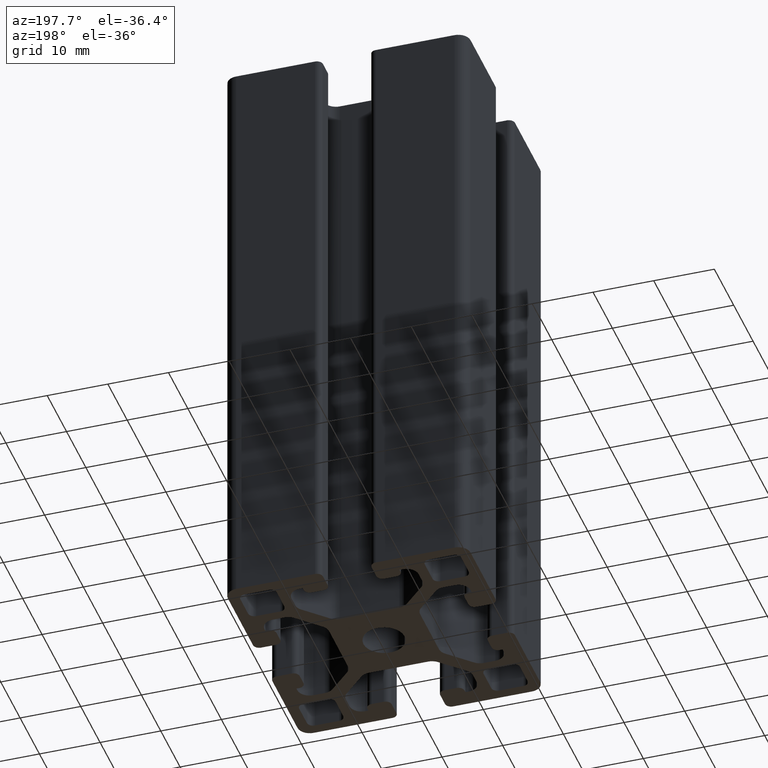
[diagram: clean part render]
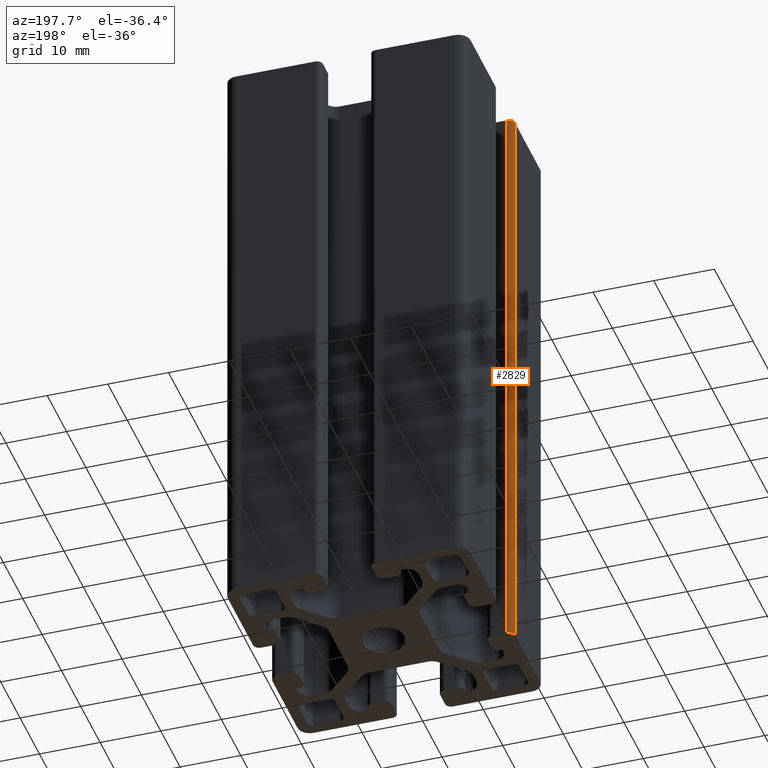
[diagram: same view with one face highlighted and labeled with its STEP entity id]
A machine part, auxiliary view. The second image highlights one B-rep face of the part: STEP entity #2829.
In plain terms, the highlighted cylindrical surface (edge-blend (fillet) strip) has radius 1 mm, axis along (0, 0, 1).
Its self-contained STEP definition (entity closure, byte-faithful):
#56=CIRCLE('',#3009,0.99999800405115);
#57=CIRCLE('',#3010,0.99999800405115);
#179=CYLINDRICAL_SURFACE('',#3008,0.99999800405115);
#262=FACE_OUTER_BOUND('',#410,.T.);
#410=EDGE_LOOP('',(#1968,#1969,#1970,#1971));
#595=LINE('',#4284,#891);
#596=LINE('',#4287,#892);
#891=VECTOR('',#3415,100.);
#892=VECTOR('',#3418,100.);
#1190=VERTEX_POINT('',#4280);
#1191=VERTEX_POINT('',#4281);
#1192=VERTEX_POINT('',#4283);
#1193=VERTEX_POINT('',#4285);
#1507=EDGE_CURVE('',#1190,#1191,#56,.T.);
#1508=EDGE_CURVE('',#1192,#1190,#595,.T.);
#1509=EDGE_CURVE('',#1193,#1192,#57,.T.);
#1510=EDGE_CURVE('',#1191,#1193,#596,.T.);
#1968=ORIENTED_EDGE('',*,*,#1507,.F.);
#1969=ORIENTED_EDGE('',*,*,#1508,.F.);
#1970=ORIENTED_EDGE('',*,*,#1509,.F.);
#1971=ORIENTED_EDGE('',*,*,#1510,.F.);
#2829=ADVANCED_FACE('',(#262),#179,.T.);
#3008=AXIS2_PLACEMENT_3D('',#4279,#3411,#3412);
#3009=AXIS2_PLACEMENT_3D('',#4282,#3413,#3414);
#3010=AXIS2_PLACEMENT_3D('',#4286,#3416,#3417);
#3411=DIRECTION('center_axis',(0.,0.,1.));
#3412=DIRECTION('ref_axis',(0.,-1.,0.));
#3413=DIRECTION('center_axis',(0.,0.,1.));
#3414=DIRECTION('ref_axis',(0.,-1.,0.));
#3415=DIRECTION('',(0.,0.,1.));
#3416=DIRECTION('center_axis',(0.,0.,-1.));
#3417=DIRECTION('ref_axis',(0.,-1.,0.));
#3418=DIRECTION('',(0.,0.,-1.));
#4279=CARTESIAN_POINT('Origin',(-19.0000019959488,-4.99999800405116,0.));
#4280=CARTESIAN_POINT('',(-19.0000019959488,-4.,100.));
#4281=CARTESIAN_POINT('',(-20.,-4.99999800405117,100.));
#4282=CARTESIAN_POINT('Origin',(-19.0000019959488,-4.99999800405116,100.));
#4283=CARTESIAN_POINT('',(-19.0000019959488,-4.,0.));
#4284=CARTESIAN_POINT('',(-19.0000019959488,-4.,0.));
#4285=CARTESIAN_POINT('',(-20.,-4.99999800405117,0.));
#4286=CARTESIAN_POINT('Origin',(-19.0000019959488,-4.99999800405116,0.));
#4287=CARTESIAN_POINT('',(-20.,-4.99999800405116,0.));